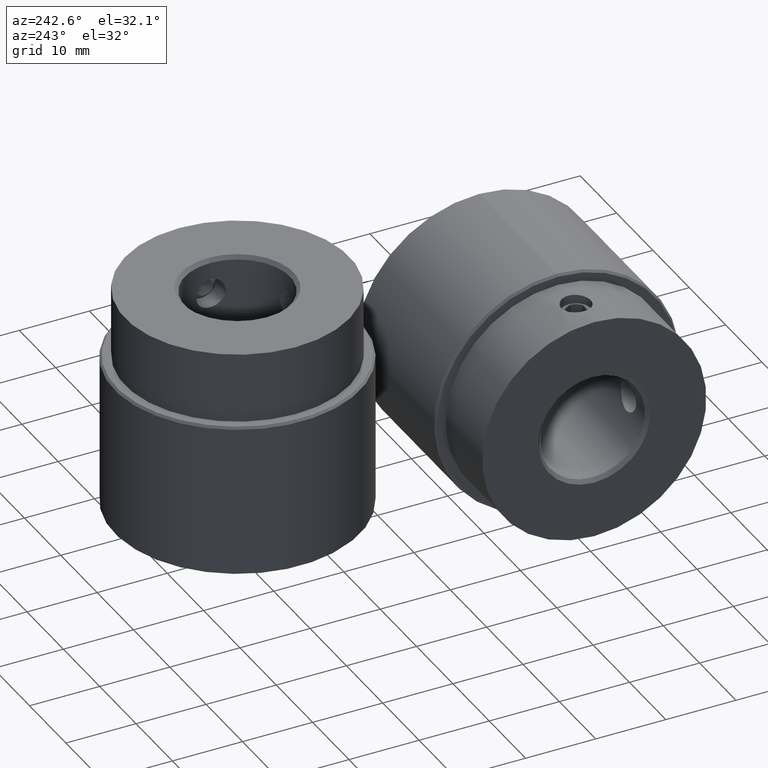
[diagram: clean part render]
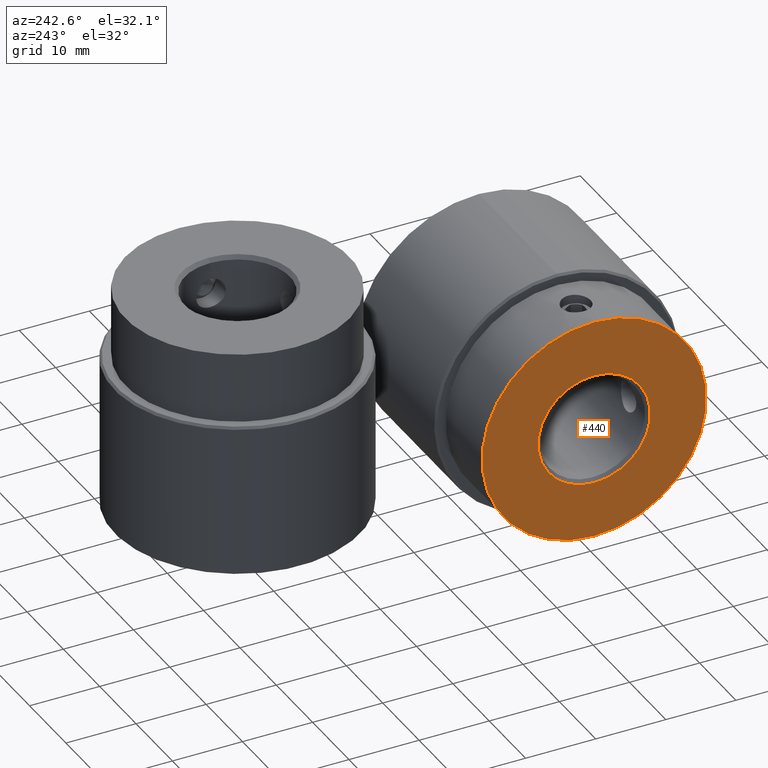
[diagram: same view with one face highlighted and labeled with its STEP entity id]
A machine part, auxiliary view. The second image highlights one B-rep face of the part: STEP entity #440.
In plain terms, the highlighted planar face has unit normal (-1, 0, 0).
Its self-contained STEP definition (entity closure, byte-faithful):
#440 = ADVANCED_FACE( '', ( #584, #585 ), #586, .T. );
#584 = FACE_BOUND( '', #784, .T. );
#585 = FACE_OUTER_BOUND( '', #785, .T. );
#586 = PLANE( '', #786 );
#784 = EDGE_LOOP( '', ( #1042 ) );
#785 = EDGE_LOOP( '', ( #1043 ) );
#786 = AXIS2_PLACEMENT_3D( '', #1044, #1045, #1046 );
#1042 = ORIENTED_EDGE( '', *, *, #1346, .T. );
#1043 = ORIENTED_EDGE( '', *, *, #1341, .T. );
#1044 = CARTESIAN_POINT( '', ( -21.0000000000000, -40.0000000000000, 11.0000000000000 ) );
#1045 = DIRECTION( '', ( -1.00000000000000, 0.000000000000000, 6.12323399573677E-017 ) );
#1046 = DIRECTION( '', ( 6.12323399573677E-017, 0.000000000000000, 1.00000000000000 ) );
#1341 = EDGE_CURVE( '', #1475, #1475, #1476, .T. );
#1346 = EDGE_CURVE( '', #1485, #1485, #1486, .F. );
#1475 = VERTEX_POINT( '', #1940 );
#1476 = CIRCLE( '', #1941, 16.0000000000000 );
#1485 = VERTEX_POINT( '', #2117 );
#1486 = CIRCLE( '', #2118, 8.00000000000000 );
#1940 = CARTESIAN_POINT( '', ( -21.0000000000000, -40.0000000000000, 27.0000000000000 ) );
#1941 = AXIS2_PLACEMENT_3D( '', #2436, #2437, #2438 );
#2117 = CARTESIAN_POINT( '', ( -21.0000000000000, -40.0000000000000, 19.0000000000000 ) );
#2118 = AXIS2_PLACEMENT_3D( '', #2442, #2443, #2444 );
#2436 = CARTESIAN_POINT( '', ( -21.0000000000000, -40.0000000000000, 11.0000000000000 ) );
#2437 = DIRECTION( '', ( -1.00000000000000, 0.000000000000000, 6.12323399573677E-017 ) );
#2438 = DIRECTION( '', ( 6.12323399573677E-017, 0.000000000000000, 1.00000000000000 ) );
#2442 = CARTESIAN_POINT( '', ( -21.0000000000000, -40.0000000000000, 11.0000000000000 ) );
#2443 = DIRECTION( '', ( -1.00000000000000, 0.000000000000000, 6.12323399573677E-017 ) );
#2444 = DIRECTION( '', ( 6.12323399573677E-017, 0.000000000000000, 1.00000000000000 ) );